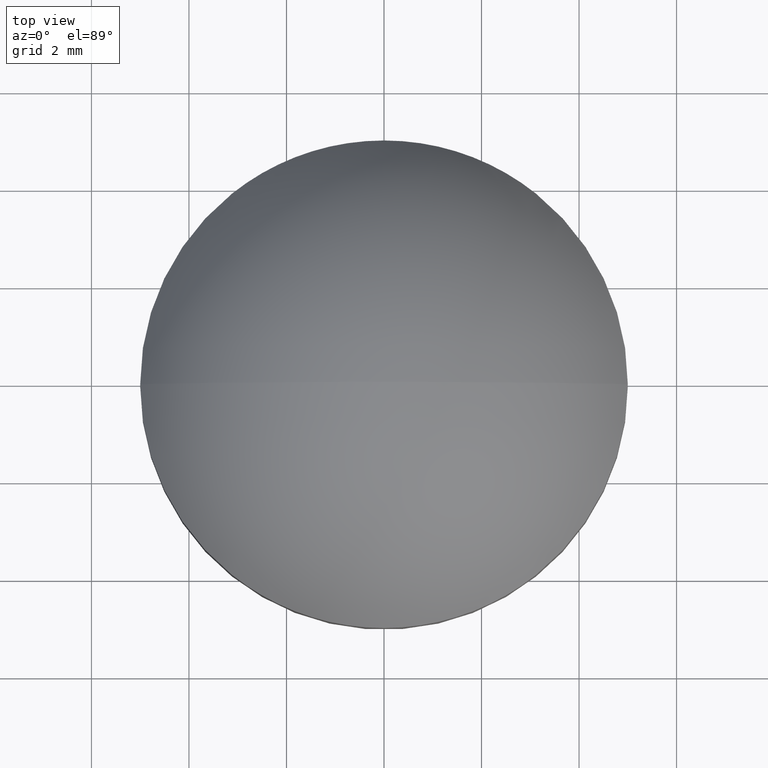
[diagram: clean part render]
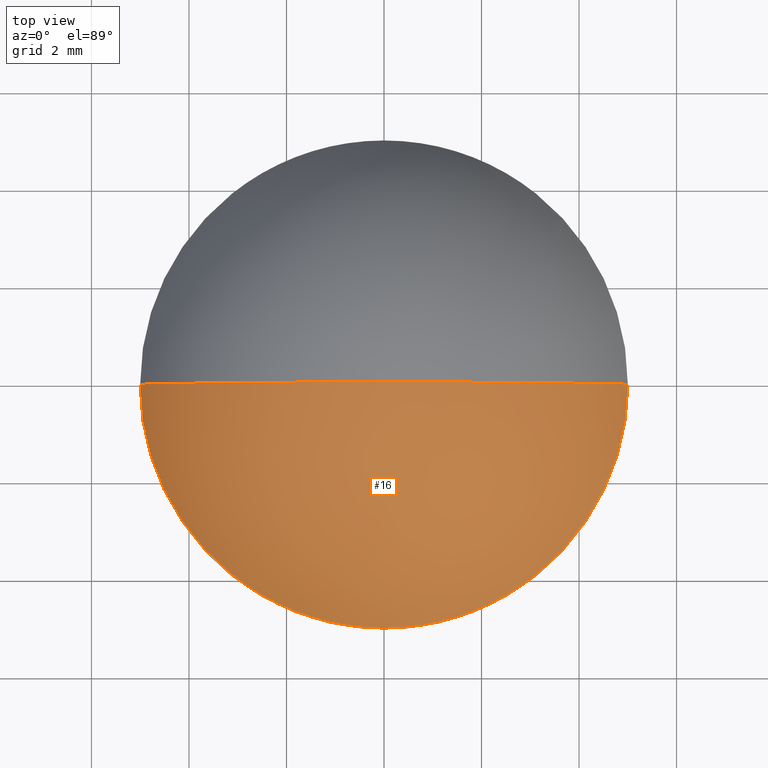
[diagram: same view with one face highlighted and labeled with its STEP entity id]
A machine part, top view. The second image highlights one B-rep face of the part: STEP entity #16.
In plain terms, the highlighted spherical surface has radius 5.8753 mm.
Its self-contained STEP definition (entity closure, byte-faithful):
#10 = AXIS2_PLACEMENT_3D ( 'NONE', #205, #157, #11 ) ;
#11 = DIRECTION ( 'NONE',  ( 0.000000000000000000, 0.000000000000000000, 1.000000000000000000 ) ) ;
#16 = ADVANCED_FACE ( 'NONE', ( #34 ), #146, .T. ) ;
#17 = DIRECTION ( 'NONE',  ( -0.000000000000000000, -1.000000000000000000, 0.000000000000000000 ) ) ;
#25 = AXIS2_PLACEMENT_3D ( 'NONE', #154, #139, #93 ) ;
#34 = FACE_OUTER_BOUND ( 'NONE', #213, .T. ) ;
#38 = CIRCLE ( 'NONE', #10, 5.875286738351255700 ) ;
#42 = DIRECTION ( 'NONE',  ( 1.000000000000000000, -1.224646799147353207E-16, 0.000000000000000000 ) ) ;
#44 = CARTESIAN_POINT ( 'NONE',  ( 5.000000000000000000, 6.123233995736766282E-16, 2.209999999999999964 ) ) ;
#53 = ORIENTED_EDGE ( 'NONE', *, *, #78, .T. ) ;
#57 = DIRECTION ( 'NONE',  ( -1.224646799147353207E-16, -1.000000000000000000, -0.000000000000000000 ) ) ;
#58 = CIRCLE ( 'NONE', #153, 5.875286738351255700 ) ;
#61 = CARTESIAN_POINT ( 'NONE',  ( -3.597575549097378931E-16, 0.000000000000000000, 5.000000000000000888 ) ) ;
#66 = VERTEX_POINT ( 'NONE', #77 ) ;
#67 = VERTEX_POINT ( 'NONE', #61 ) ;
#77 = CARTESIAN_POINT ( 'NONE',  ( -5.000000000000000000, 0.000000000000000000, 2.209999999999999964 ) ) ;
#78 = EDGE_CURVE ( 'NONE', #66, #201, #168, .T. ) ;
#93 = DIRECTION ( 'NONE',  ( 1.000000000000000000, 0.000000000000000000, 0.000000000000000000 ) ) ;
#97 = EDGE_CURVE ( 'NONE', #66, #67, #38, .T. ) ;
#106 = AXIS2_PLACEMENT_3D ( 'NONE', #203, #17, #134 ) ;
#119 = EDGE_CURVE ( 'NONE', #201, #67, #58, .T. ) ;
#126 = CARTESIAN_POINT ( 'NONE',  ( 0.000000000000000000, 0.000000000000000000, -0.8752867383512550337 ) ) ;
#134 = DIRECTION ( 'NONE',  ( -1.000000000000000000, 0.000000000000000000, 0.000000000000000000 ) ) ;
#139 = DIRECTION ( 'NONE',  ( 0.000000000000000000, 0.000000000000000000, 1.000000000000000000 ) ) ;
#146 = SPHERICAL_SURFACE ( 'NONE', #106, 5.875286738351255700 ) ;
#153 = AXIS2_PLACEMENT_3D ( 'NONE', #126, #57, #42 ) ;
#154 = CARTESIAN_POINT ( 'NONE',  ( 0.000000000000000000, 0.000000000000000000, 2.209999999999999964 ) ) ;
#157 = DIRECTION ( 'NONE',  ( 0.000000000000000000, 1.000000000000000000, 0.000000000000000000 ) ) ;
#168 = CIRCLE ( 'NONE', #25, 5.000000000000000000 ) ;
#195 = ORIENTED_EDGE ( 'NONE', *, *, #97, .F. ) ;
#201 = VERTEX_POINT ( 'NONE', #44 ) ;
#203 = CARTESIAN_POINT ( 'NONE',  ( 0.000000000000000000, 0.000000000000000000, -0.8752867383512550337 ) ) ;
#205 = CARTESIAN_POINT ( 'NONE',  ( 0.000000000000000000, 0.000000000000000000, -0.8752867383512550337 ) ) ;
#212 = ORIENTED_EDGE ( 'NONE', *, *, #119, .T. ) ;
#213 = EDGE_LOOP ( 'NONE', ( #53, #212, #195 ) ) ;